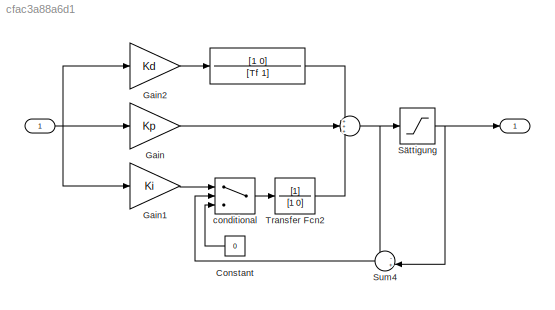
MODEL slx_cfac3a88a6d1
KIND model
CONFIG AbsTol = 1e-4
CONFIG EnableMultiTasking = off
CONFIG FixedStep = 1e-2
CONFIG MaxStep = auto
CONFIG MinStep = auto
CONFIG RelTol = 1e-4
CONFIG SampleTimeConstraint = Unconstrained
CONFIG SolverName = ode45
CONFIG StartTime = 0.0
CONFIG StopTime = 10.0
BLOCK [Outport]   
BLOCK [Inport]    
BLOCK [Sum]     
  Inputs = +++
BLOCK [TransferFcn]          
  Denominator = [Tf 1]
  Numerator = [1 0]
BLOCK [Constant] Constant
  NameLocation = top
  Value = 0
BLOCK [Gain] Gain
  Gain = Kp
BLOCK [Gain] Gain1
  Gain = Ki
BLOCK [Gain] Gain2
  Gain = Kd
BLOCK [Sum] Sum4
  Inputs = -+|
  NameLocation = top
BLOCK [Saturate] Sättigung
  LowerLimit = -4
  UpperLimit = 4
BLOCK [TransferFcn] Transfer Fcn2
  Denominator = [1 0]
BLOCK [Switch] conditional
  Criteria = u2 > Threshold
  InputSameDT = off
  SaturateOnIntegerOverflow = off
LINE          :1 ->     :1
NET     :1 -> Sum4:1, Sättigung:1
NET    :1 -> Gain1:1, Gain2:1, Gain:1
LINE Constant:1 -> conditional:3
LINE Gain1:1 -> conditional:1
LINE Gain2:1 ->          :1
LINE Gain:1 ->     :2
LINE Sum4:1 -> conditional:2
NET Sättigung:1 ->   :1, Sum4:2
LINE Transfer Fcn2:1 ->     :3
LINE conditional:1 -> Transfer Fcn2:1
note: NET lines group one-source signal fan-out (src -> all destinations, sorted); 1:1 wires keep LINE
